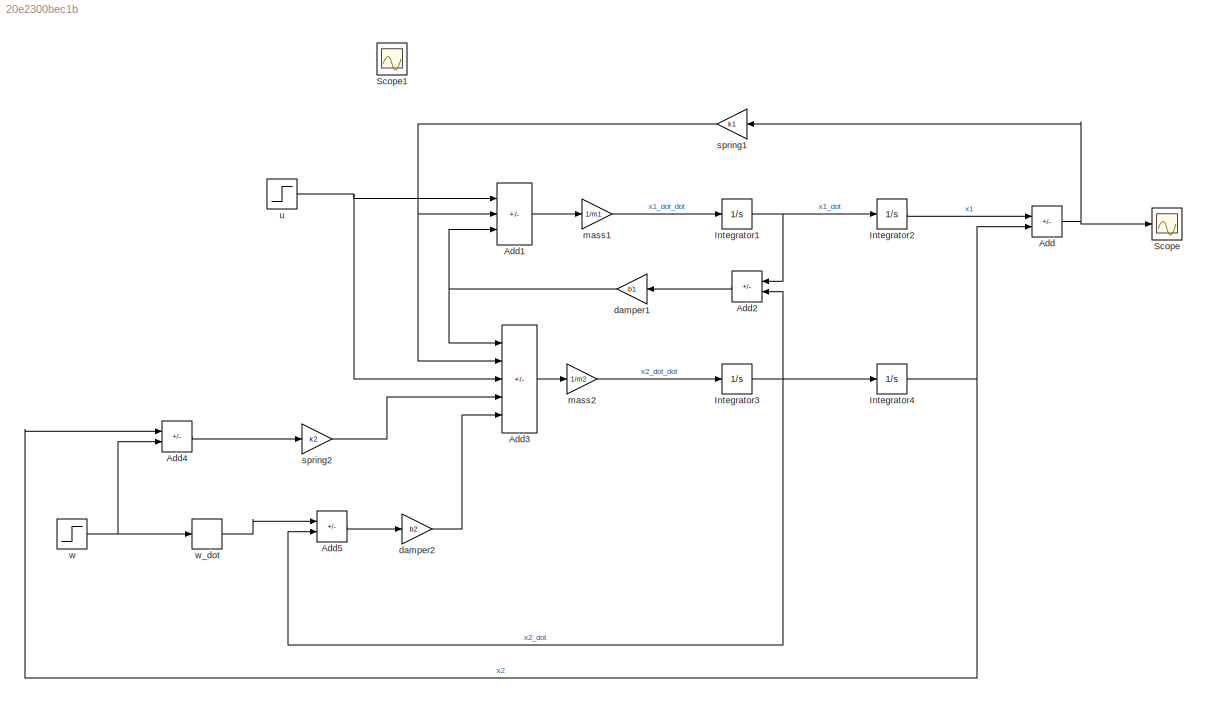
MODEL slx_20e2300bec1b
KIND model
CONFIG AbsTol = auto
CONFIG EnableMultiTasking = off
CONFIG FixedStep = auto
CONFIG MaxStep = auto
CONFIG MinStep = auto
CONFIG RelTol = 1e-3
CONFIG SampleTimeConstraint = Unconstrained
CONFIG SolverName = VariableStepAuto
CONFIG StartTime = 0.0
CONFIG StopTime = 50
WORKSPACE source: mxarray member
WORKSPACE b1 = 350
WORKSPACE b2 = 15020
WORKSPACE k1 = 80000
WORKSPACE k2 = 500000
WORKSPACE m1 = 2500
WORKSPACE m2 = 320
BLOCK [Sum] Add
  IconShape = rectangular
  Inputs = +-
  Ports = [2, 1]
BLOCK [Sum] Add1
  IconShape = rectangular
  Inputs = +--
  Ports = [3, 1]
BLOCK [Sum] Add2
  IconShape = rectangular
  Inputs = +-
  Ports = [2, 1]
BLOCK [Sum] Add3
  IconShape = rectangular
  Inputs = ++-++
  Ports = [5, 1]
BLOCK [Sum] Add4
  IconShape = rectangular
  Inputs = -+
  Ports = [2, 1]
BLOCK [Sum] Add5
  IconShape = rectangular
  Inputs = +-
  Ports = [2, 1]
BLOCK [Integrator] Integrator1
  Ports = [1, 1]
BLOCK [Integrator] Integrator2
  Ports = [1, 1]
BLOCK [Integrator] Integrator3
  Ports = [1, 1]
BLOCK [Integrator] Integrator4
  Ports = [1, 1]
BLOCK [Scope] Scope
  Floating = off
  NumInputPorts = 1
  Ports = [1]
  ScopeSpecificationString = Simulink.scopes.TimeScopeBlockCfg('CurrentConfiguration', extmgr.ConfigurationSet(extmgr.Configuration('Core','General UI',true),extmgr.Configuration('Core','Source UI',true),extmgr.Configuration('Sources','WiredSimulink',true),extmgr.Configuration('Visuals','Time Domain',true,'SerializedDisplays',{struct('MinYLimReal','-1.12623','MaxYLimReal','1.02174','YLabelReal','','MinYLimMag','0.00000','MaxY...<+1356ch>
BLOCK [Scope] Scope1
  Floating = off
  IOType = viewer
  NumInputPorts = 1
  Ports = []
  ScopeSpecificationString = Simulink.scopes.TimeScopeBlockCfg('CurrentConfiguration', extmgr.ConfigurationSet(extmgr.Configuration('Core','General UI',true),extmgr.Configuration('Core','Source UI',true),extmgr.Configuration('Sources','WiredSimulink',true,'DataLoggingVariableName','ScopeData1'),extmgr.Configuration('Visuals','Time Domain',true,'SerializedDisplays',{struct('MinYLimReal','-1.15036','MaxYLimReal','1.23893','YLab...<+1366ch>
BLOCK [Gain] damper1
  Gain = b1
BLOCK [Gain] damper2
  Gain = b2
BLOCK [Gain] mass1
  Gain = 1/m1
BLOCK [Gain] mass2
  Gain = 1/m2
BLOCK [Gain] spring1
  Gain = k1
BLOCK [Gain] spring2
  Gain = k2
BLOCK [Step] u
  SampleTime = 0
  Time = 0
BLOCK [Step] w
  SampleTime = 0
  Time = 0
BLOCK [Derivative] w_dot
LINE Add1:1 -> mass1:1
LINE Add2:1 -> damper1:1
LINE Add3:1 -> mass2:1
LINE Add4:1 -> spring2:1
LINE Add5:1 -> damper2:1
NET Add:1 -> Scope:1, spring1:1
NET Integrator1:1 -> Add2:1, Integrator2:1
LINE Integrator2:1 -> Add:1
NET Integrator3:1 -> Add2:2, Add5:2, Integrator4:1
NET Integrator4:1 -> Add4:1, Add:2
NET damper1:1 -> Add1:3, Add3:1
LINE damper2:1 -> Add3:5
LINE mass1:1 -> Integrator1:1
LINE mass2:1 -> Integrator3:1
NET spring1:1 -> Add1:2, Add3:2
LINE spring2:1 -> Add3:4
NET u:1 -> Add1:1, Add3:3
NET w:1 -> Add4:2, w_dot:1
LINE w_dot:1 -> Add5:1
note: NET lines group one-source signal fan-out (src -> all destinations, sorted); 1:1 wires keep LINE
